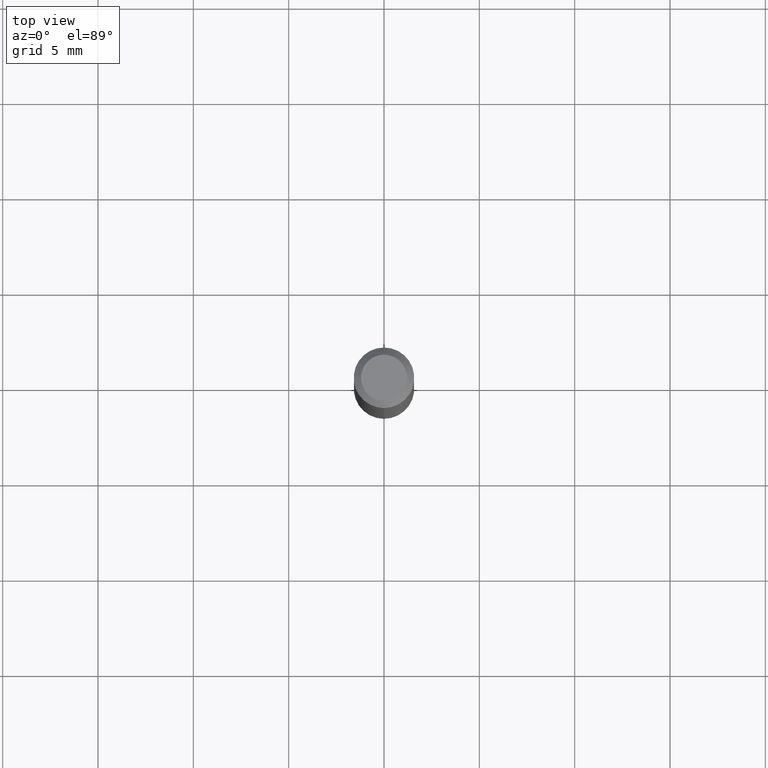
[diagram: clean part render]
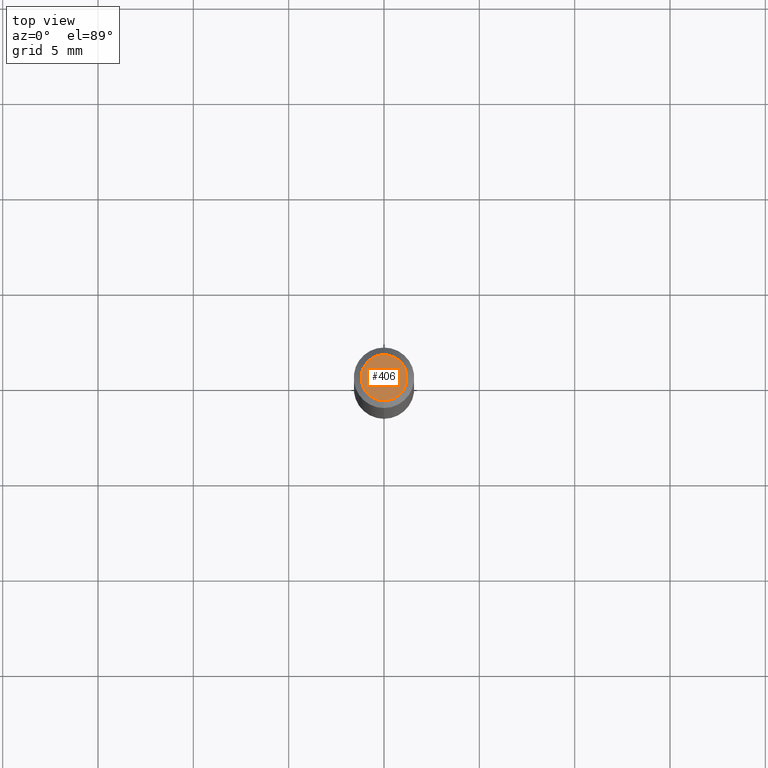
[diagram: same view with one face highlighted and labeled with its STEP entity id]
A machine part, top view. The second image highlights one B-rep face of the part: STEP entity #406.
In plain terms, the highlighted planar face has unit normal (0, -0, -1).
Its self-contained STEP definition (entity closure, byte-faithful):
#15 = DIRECTION ( 'NONE',  ( 6.982962677686265922E-15, 1.000000000000000000, -3.491460305374776065E-15 ) ) ;
#121 = DIRECTION ( 'NONE',  ( -2.445483493777596919E-29, 3.491460305374776460E-15, 1.000000000000000000 ) ) ;
#149 = DIRECTION ( 'NONE',  ( -6.982962677686266711E-15, -1.000000000000000000, 3.491460305374776854E-15 ) ) ;
#165 = FACE_OUTER_BOUND ( 'NONE', #512, .T. ) ;
#169 = PLANE ( 'NONE',  #344 ) ;
#173 = AXIS2_PLACEMENT_3D ( 'NONE', #397, #232, #149 ) ;
#187 = ORIENTED_EDGE ( 'NONE', *, *, #247, .T. ) ;
#214 = DIRECTION ( 'NONE',  ( 2.445483493777596919E-29, -3.491460305374776065E-15, -1.000000000000000000 ) ) ;
#232 = DIRECTION ( 'NONE',  ( -2.445483493777596919E-29, 3.491460305374776460E-15, 1.000000000000000000 ) ) ;
#236 = VERTEX_POINT ( 'NONE', #322 ) ;
#237 = AXIS2_PLACEMENT_3D ( 'NONE', #503, #121, #279 ) ;
#247 = EDGE_CURVE ( 'NONE', #496, #236, #308, .T. ) ;
#279 = DIRECTION ( 'NONE',  ( -6.982962677686266711E-15, -1.000000000000000000, 3.491460305374776854E-15 ) ) ;
#286 = EDGE_CURVE ( 'NONE', #236, #496, #454, .T. ) ;
#308 = CIRCLE ( 'NONE', #173, 0.04749999999999999362 ) ;
#322 = CARTESIAN_POINT ( 'NONE',  ( -3.773273898774340269E-16, -0.04749999999999999362, 1.003431313631581380E-16 ) ) ;
#323 = CARTESIAN_POINT ( 'NONE',  ( 3.316907271900976096E-16, 0.04749999999999999362, -1.985949810763737402E-16 ) ) ;
#344 = AXIS2_PLACEMENT_3D ( 'NONE', #323, #214, #15 ) ;
#397 = CARTESIAN_POINT ( 'NONE',  ( 1.601821844711906154E-45, -2.286949554688936389E-31, -6.550123314214373889E-17 ) ) ;
#406 = ADVANCED_FACE ( 'NONE', ( #165 ), #169, .F. ) ;
#454 = CIRCLE ( 'NONE', #237, 0.04749999999999999362 ) ;
#485 = CARTESIAN_POINT ( 'NONE',  ( 3.840629472727447874E-16, 0.04749999999999999362, -2.313455976474456035E-16 ) ) ;
#496 = VERTEX_POINT ( 'NONE', #485 ) ;
#503 = CARTESIAN_POINT ( 'NONE',  ( 1.601821844711906154E-45, -2.286949554688936389E-31, -6.550123314214373889E-17 ) ) ;
#506 = ORIENTED_EDGE ( 'NONE', *, *, #286, .T. ) ;
#512 = EDGE_LOOP ( 'NONE', ( #187, #506 ) ) ;